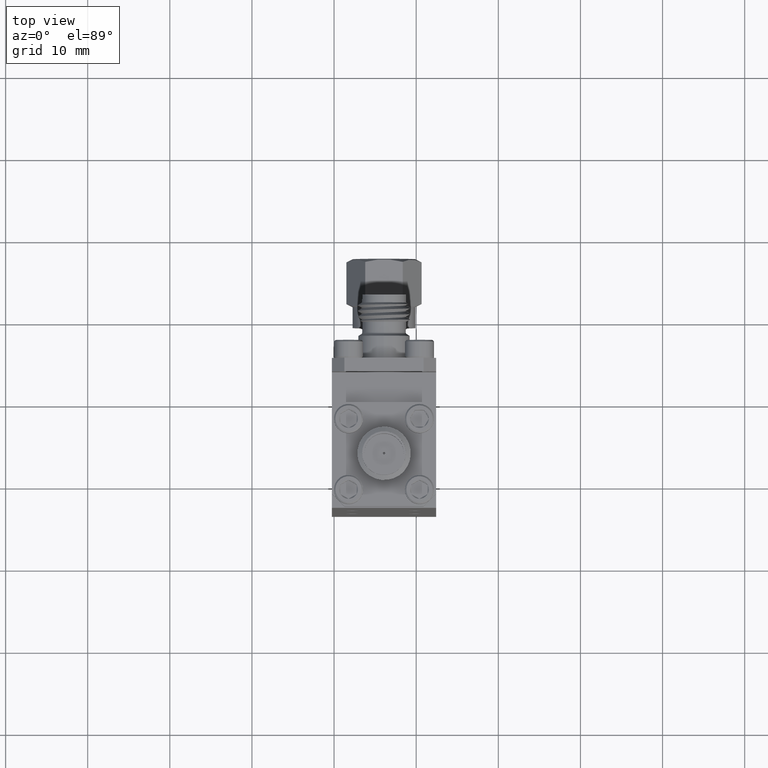
[diagram: clean part render]
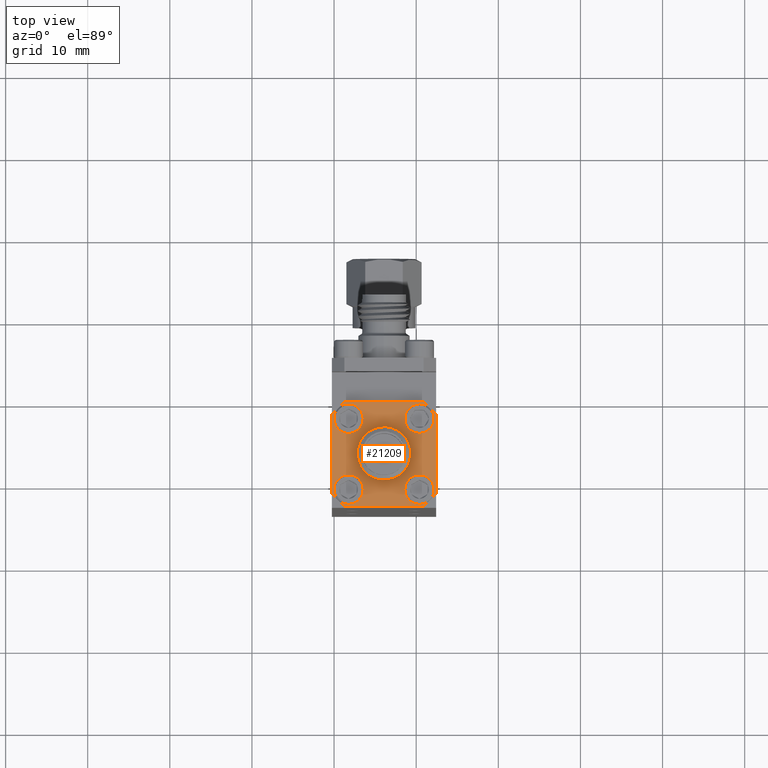
[diagram: same view with one face highlighted and labeled with its STEP entity id]
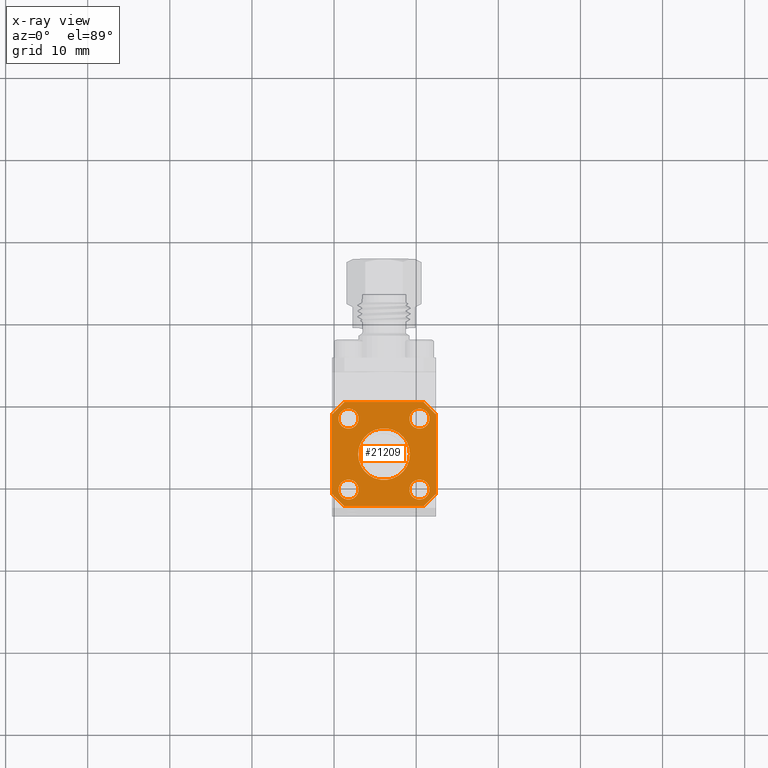
[diagram: x-ray of the same camera — body ghosted, the highlighted face saturated]
A machine part, top view. The second image highlights one B-rep face of the part: STEP entity #21209.
The next image is the same camera in x-ray: the body ghosted, the highlighted face saturated — about 0% of this face is hidden behind the body in this view.
In plain terms, the highlighted planar face has unit normal (-0, -0, 1).
Its self-contained STEP definition (entity closure, byte-faithful):
#105 = DIRECTION ( 'NONE',  ( -1.000000000000000000, 6.106226635438364900E-016, -6.661338147750939200E-016 ) ) ;
#142 = AXIS2_PLACEMENT_3D ( 'NONE', #15738, #5487, #12303 ) ;
#163 = CIRCLE ( 'NONE', #6378, 0.04800000000000014700 ) ;
#443 = AXIS2_PLACEMENT_3D ( 'NONE', #2392, #9333, #2934 ) ;
#454 = VECTOR ( 'NONE', #16244, 39.37007874015748100 ) ;
#618 = CARTESIAN_POINT ( 'NONE',  ( -1.505499139784813600, 0.3386979808095783000, 1.622181018322136600 ) ) ;
#649 = VERTEX_POINT ( 'NONE', #12046 ) ;
#1486 = EDGE_CURVE ( 'NONE', #5425, #17330, #163, .T. ) ;
#1490 = EDGE_CURVE ( 'NONE', #15209, #21714, #6889, .T. ) ;
#1546 = AXIS2_PLACEMENT_3D ( 'NONE', #20164, #8237, #20244 ) ;
#1616 = VECTOR ( 'NONE', #18590, 39.37007874015748900 ) ;
#1701 = VECTOR ( 'NONE', #17772, 39.37007874015748900 ) ;
#1764 = AXIS2_PLACEMENT_3D ( 'NONE', #15164, #15094, #4810 ) ;
#2081 = CARTESIAN_POINT ( 'NONE',  ( -1.459499139784813600, 0.5086979808095784000, 1.622181018322136600 ) ) ;
#2099 = DIRECTION ( 'NONE',  ( -0.7071067811865481300, -0.7071067811865469100, 7.512940834746601900E-017 ) ) ;
#2161 = DIRECTION ( 'NONE',  ( -1.665334536937734800E-016, -5.551115123125782700E-017, 1.000000000000000000 ) ) ;
#2392 = CARTESIAN_POINT ( 'NONE',  ( -1.165499139784813600, 0.6786979808095783300, 1.622181018322136600 ) ) ;
#2402 = CIRCLE ( 'NONE', #1546, 0.04800000000000014700 ) ;
#2689 = ORIENTED_EDGE ( 'NONE', *, *, #8994, .T. ) ;
#2902 = CARTESIAN_POINT ( 'NONE',  ( -1.117499139784813500, 0.3386979808095775800, 1.622181018322136600 ) ) ;
#2934 = DIRECTION ( 'NONE',  ( -1.000000000000000000, 0.0000000000000000000, 0.0000000000000000000 ) ) ;
#3217 = AXIS2_PLACEMENT_3D ( 'NONE', #4437, #18359, #18212 ) ;
#3477 = CIRCLE ( 'NONE', #8995, 0.04800000000000000800 ) ;
#4031 = EDGE_CURVE ( 'NONE', #20368, #11474, #16230, .T. ) ;
#4147 = CIRCLE ( 'NONE', #443, 0.04800000000000000800 ) ;
#4303 = CARTESIAN_POINT ( 'NONE',  ( -1.115499139784813300, 0.7286979808095778200, 1.622181018322136300 ) ) ;
#4437 = CARTESIAN_POINT ( 'NONE',  ( -1.335499139784813500, 0.5086979808095784000, 1.622181018322136600 ) ) ;
#4634 = ORIENTED_EDGE ( 'NONE', *, *, #16987, .T. ) ;
#4708 = VECTOR ( 'NONE', #15859, 39.37007874015748100 ) ;
#4810 = DIRECTION ( 'NONE',  ( -1.000000000000000000, 0.0000000000000000000, 0.0000000000000000000 ) ) ;
#4950 = FACE_BOUND ( 'NONE', #20242, .T. ) ;
#5011 = CARTESIAN_POINT ( 'NONE',  ( -1.585499139784813500, 0.2586979808095782300, 1.622181018322136600 ) ) ;
#5033 = VERTEX_POINT ( 'NONE', #11859 ) ;
#5425 = VERTEX_POINT ( 'NONE', #12302 ) ;
#5486 = CARTESIAN_POINT ( 'NONE',  ( -1.165499139784813600, 0.6786979808095783300, 1.622181018322136600 ) ) ;
#5487 = DIRECTION ( 'NONE',  ( -1.665334536937734800E-016, -5.551115123125782700E-017, 1.000000000000000000 ) ) ;
#5610 = AXIS2_PLACEMENT_3D ( 'NONE', #19638, #12793, #14516 ) ;
#6221 = CARTESIAN_POINT ( 'NONE',  ( -1.457499139784813400, 0.6786979808095782200, 1.622181018322136600 ) ) ;
#6309 = FACE_BOUND ( 'NONE', #9690, .T. ) ;
#6378 = AXIS2_PLACEMENT_3D ( 'NONE', #618, #9171, #17882 ) ;
#6397 = DIRECTION ( 'NONE',  ( -1.000000000000000000, 0.0000000000000000000, 0.0000000000000000000 ) ) ;
#6450 = AXIS2_PLACEMENT_3D ( 'NONE', #11478, #13210, #6397 ) ;
#6529 = ORIENTED_EDGE ( 'NONE', *, *, #7449, .F. ) ;
#6872 = PLANE ( 'NONE',  #10364 ) ;
#6889 = CIRCLE ( 'NONE', #22149, 0.04800000000000014700 ) ;
#6901 = CIRCLE ( 'NONE', #1764, 0.04800000000000000800 ) ;
#7193 = CARTESIAN_POINT ( 'NONE',  ( -1.085499139784813700, 0.3186979808095779500, 1.622181018322136600 ) ) ;
#7449 = EDGE_CURVE ( 'NONE', #11474, #20368, #16992, .T. ) ;
#7744 = DIRECTION ( 'NONE',  ( -1.000000000000000000, 0.0000000000000000000, 0.0000000000000000000 ) ) ;
#8070 = LINE ( 'NONE', #5011, #9412 ) ;
#8137 = ORIENTED_EDGE ( 'NONE', *, *, #11259, .F. ) ;
#8237 = DIRECTION ( 'NONE',  ( -1.665334536937734800E-016, -5.551115123125782700E-017, 1.000000000000000000 ) ) ;
#8246 = EDGE_CURVE ( 'NONE', #5033, #18737, #3477, .T. ) ;
#8331 = VERTEX_POINT ( 'NONE', #2902 ) ;
#8365 = LINE ( 'NONE', #4303, #1616 ) ;
#8444 = FACE_BOUND ( 'NONE', #18070, .T. ) ;
#8795 = ORIENTED_EDGE ( 'NONE', *, *, #16175, .T. ) ;
#8994 = EDGE_CURVE ( 'NONE', #9540, #14217, #8070, .T. ) ;
#8995 = AXIS2_PLACEMENT_3D ( 'NONE', #5486, #19820, #7744 ) ;
#9171 = DIRECTION ( 'NONE',  ( -1.665334536937734800E-016, -5.551115123125782700E-017, 1.000000000000000000 ) ) ;
#9255 = CARTESIAN_POINT ( 'NONE',  ( -1.213499139784813600, 0.3386979808095781900, 1.622181018322136600 ) ) ;
#9333 = DIRECTION ( 'NONE',  ( -1.665334536937734800E-016, -5.551115123125782700E-017, 1.000000000000000000 ) ) ;
#9412 = VECTOR ( 'NONE', #12900, 39.37007874015748100 ) ;
#9525 = EDGE_CURVE ( 'NONE', #20067, #8331, #18239, .T. ) ;
#9540 = VERTEX_POINT ( 'NONE', #18401 ) ;
#9690 = EDGE_LOOP ( 'NONE', ( #16853, #11778 ) ) ;
#10268 = CARTESIAN_POINT ( 'NONE',  ( -1.211499139784813600, 0.5086979808095781800, 1.622181018322136600 ) ) ;
#10305 = LINE ( 'NONE', #14035, #11676 ) ;
#10364 = AXIS2_PLACEMENT_3D ( 'NONE', #22158, #13802, #105 ) ;
#10574 = ORIENTED_EDGE ( 'NONE', *, *, #14467, .F. ) ;
#10713 = CARTESIAN_POINT ( 'NONE',  ( -1.115499139784814200, 0.2886979808095779300, 1.622181018322136600 ) ) ;
#10893 = LINE ( 'NONE', #13982, #4708 ) ;
#11113 = LINE ( 'NONE', #12222, #17049 ) ;
#11185 = EDGE_CURVE ( 'NONE', #649, #18097, #8365, .T. ) ;
#11259 = EDGE_CURVE ( 'NONE', #21714, #15209, #2402, .T. ) ;
#11419 = VECTOR ( 'NONE', #20066, 39.37007874015748900 ) ;
#11474 = VERTEX_POINT ( 'NONE', #10268 ) ;
#11478 = CARTESIAN_POINT ( 'NONE',  ( -1.165499139784813600, 0.3386979808095781900, 1.622181018322136600 ) ) ;
#11663 = LINE ( 'NONE', #10713, #1701 ) ;
#11676 = VECTOR ( 'NONE', #2099, 39.37007874015748900 ) ;
#11760 = ORIENTED_EDGE ( 'NONE', *, *, #16931, .T. ) ;
#11778 = ORIENTED_EDGE ( 'NONE', *, *, #20105, .F. ) ;
#11859 = CARTESIAN_POINT ( 'NONE',  ( -1.213499139784813600, 0.6786979808095783300, 1.622181018322136600 ) ) ;
#12046 = CARTESIAN_POINT ( 'NONE',  ( -1.085499139784814400, 0.6986979808095780100, 1.622181018322136600 ) ) ;
#12084 = ORIENTED_EDGE ( 'NONE', *, *, #1486, .F. ) ;
#12201 = EDGE_CURVE ( 'NONE', #17330, #5425, #19321, .T. ) ;
#12222 = CARTESIAN_POINT ( 'NONE',  ( -1.585499139784813500, 0.7586979808095781800, 1.622181018322136600 ) ) ;
#12302 = CARTESIAN_POINT ( 'NONE',  ( -1.553499139784813700, 0.3386979808095783000, 1.622181018322136600 ) ) ;
#12303 = DIRECTION ( 'NONE',  ( -1.000000000000000000, 5.507758051742461700E-016, 0.0000000000000000000 ) ) ;
#12450 = VERTEX_POINT ( 'NONE', #13326 ) ;
#12691 = CARTESIAN_POINT ( 'NONE',  ( -1.525499139784813400, 0.7586979808095781800, 1.622181018322136600 ) ) ;
#12722 = ORIENTED_EDGE ( 'NONE', *, *, #15774, .T. ) ;
#12793 = DIRECTION ( 'NONE',  ( -1.665334536937734800E-016, -5.551115123125782700E-017, 1.000000000000000000 ) ) ;
#12900 = DIRECTION ( 'NONE',  ( 1.000000000000000000, -6.106226635438364900E-016, 6.661338147750939200E-016 ) ) ;
#13210 = DIRECTION ( 'NONE',  ( -1.665334536937734800E-016, -5.551115123125782700E-017, 1.000000000000000000 ) ) ;
#13326 = CARTESIAN_POINT ( 'NONE',  ( -1.585499139784813500, 0.6986979808095783500, 1.622181018322136600 ) ) ;
#13631 = VERTEX_POINT ( 'NONE', #15703 ) ;
#13634 = DIRECTION ( 'NONE',  ( -1.000000000000000000, 6.106226635438364900E-016, -6.661338147750939200E-016 ) ) ;
#13802 = DIRECTION ( 'NONE',  ( -6.661338147750939200E-016, -5.551115123125751900E-017, 1.000000000000000000 ) ) ;
#13846 = EDGE_CURVE ( 'NONE', #19582, #649, #16856, .T. ) ;
#13982 = CARTESIAN_POINT ( 'NONE',  ( -1.585499139784813500, 0.2586979808095782300, 1.622181018322136600 ) ) ;
#14035 = CARTESIAN_POINT ( 'NONE',  ( -1.555499139784813500, 0.7286979808095784800, 1.622181018322136300 ) ) ;
#14217 = VERTEX_POINT ( 'NONE', #15758 ) ;
#14279 = CARTESIAN_POINT ( 'NONE',  ( -1.085499139784813500, 0.2586979808095781800, 1.622181018322136600 ) ) ;
#14467 = EDGE_CURVE ( 'NONE', #8331, #20067, #6901, .T. ) ;
#14516 = DIRECTION ( 'NONE',  ( -1.000000000000000000, 0.0000000000000000000, 0.0000000000000000000 ) ) ;
#14869 = CARTESIAN_POINT ( 'NONE',  ( -1.555499139784813900, 0.2886979808095784800, 1.622181018322136600 ) ) ;
#15052 = ORIENTED_EDGE ( 'NONE', *, *, #1490, .F. ) ;
#15090 = CARTESIAN_POINT ( 'NONE',  ( -1.553499139784813700, 0.6786979808095783300, 1.622181018322136600 ) ) ;
#15094 = DIRECTION ( 'NONE',  ( -1.665334536937734800E-016, -5.551115123125782700E-017, 1.000000000000000000 ) ) ;
#15150 = FACE_BOUND ( 'NONE', #17696, .T. ) ;
#15164 = CARTESIAN_POINT ( 'NONE',  ( -1.165499139784813600, 0.3386979808095781900, 1.622181018322136600 ) ) ;
#15209 = VERTEX_POINT ( 'NONE', #6221 ) ;
#15703 = CARTESIAN_POINT ( 'NONE',  ( -1.585499139784813300, 0.3186979808095769000, 1.622181018322136600 ) ) ;
#15738 = CARTESIAN_POINT ( 'NONE',  ( -1.335499139784813500, 0.5086979808095784000, 1.622181018322136600 ) ) ;
#15758 = CARTESIAN_POINT ( 'NONE',  ( -1.145499139784814000, 0.2586979808095782300, 1.622181018322136800 ) ) ;
#15774 = EDGE_CURVE ( 'NONE', #12450, #13631, #10893, .T. ) ;
#15859 = DIRECTION ( 'NONE',  ( 2.220446049250312300E-016, -1.000000000000000000, 5.551115123125785200E-017 ) ) ;
#15903 = CARTESIAN_POINT ( 'NONE',  ( -1.505499139784813600, 0.6786979808095783300, 1.622181018322136600 ) ) ;
#16175 = EDGE_CURVE ( 'NONE', #13631, #9540, #21615, .T. ) ;
#16230 = CIRCLE ( 'NONE', #142, 0.1240000000000001000 ) ;
#16244 = DIRECTION ( 'NONE',  ( -2.220446049250312300E-016, 1.000000000000000000, -5.551115123125785200E-017 ) ) ;
#16853 = ORIENTED_EDGE ( 'NONE', *, *, #8246, .F. ) ;
#16856 = LINE ( 'NONE', #14279, #454 ) ;
#16931 = EDGE_CURVE ( 'NONE', #18097, #20142, #11113, .T. ) ;
#16948 = CARTESIAN_POINT ( 'NONE',  ( -1.457499139784813400, 0.3386979808095780300, 1.622181018322136600 ) ) ;
#16987 = EDGE_CURVE ( 'NONE', #14217, #19582, #11663, .T. ) ;
#16992 = CIRCLE ( 'NONE', #3217, 0.1240000000000001000 ) ;
#17015 = CARTESIAN_POINT ( 'NONE',  ( -1.145499139784813500, 0.7586979808095781800, 1.622181018322136600 ) ) ;
#17049 = VECTOR ( 'NONE', #13634, 39.37007874015748100 ) ;
#17163 = ORIENTED_EDGE ( 'NONE', *, *, #4031, .F. ) ;
#17330 = VERTEX_POINT ( 'NONE', #16948 ) ;
#17456 = ORIENTED_EDGE ( 'NONE', *, *, #11185, .T. ) ;
#17654 = ORIENTED_EDGE ( 'NONE', *, *, #12201, .F. ) ;
#17696 = EDGE_LOOP ( 'NONE', ( #6529, #17163 ) ) ;
#17772 = DIRECTION ( 'NONE',  ( 0.7071067811865481300, 0.7071067811865469100, 4.737072838918524300E-016 ) ) ;
#17816 = ORIENTED_EDGE ( 'NONE', *, *, #13846, .T. ) ;
#17882 = DIRECTION ( 'NONE',  ( -1.000000000000000000, 0.0000000000000000000, 0.0000000000000000000 ) ) ;
#18056 = ORIENTED_EDGE ( 'NONE', *, *, #9525, .F. ) ;
#18070 = EDGE_LOOP ( 'NONE', ( #8137, #15052 ) ) ;
#18097 = VERTEX_POINT ( 'NONE', #17015 ) ;
#18122 = FACE_BOUND ( 'NONE', #21980, .T. ) ;
#18212 = DIRECTION ( 'NONE',  ( -1.000000000000000000, 5.507758051742461700E-016, 0.0000000000000000000 ) ) ;
#18239 = CIRCLE ( 'NONE', #6450, 0.04800000000000000800 ) ;
#18359 = DIRECTION ( 'NONE',  ( -1.665334536937734800E-016, -5.551115123125782700E-017, 1.000000000000000000 ) ) ;
#18401 = CARTESIAN_POINT ( 'NONE',  ( -1.525499139784813900, 0.2586979808095781800, 1.622181018322136600 ) ) ;
#18544 = EDGE_LOOP ( 'NONE', ( #12722, #8795, #2689, #4634, #17816, #17456, #11760, #21574 ) ) ;
#18590 = DIRECTION ( 'NONE',  ( -0.7071067811865461300, 0.7071067811865489100, -6.224578317002508200E-017 ) ) ;
#18737 = VERTEX_POINT ( 'NONE', #20143 ) ;
#19321 = CIRCLE ( 'NONE', #5610, 0.04800000000000014700 ) ;
#19451 = DIRECTION ( 'NONE',  ( -1.000000000000000000, 0.0000000000000000000, 0.0000000000000000000 ) ) ;
#19582 = VERTEX_POINT ( 'NONE', #7193 ) ;
#19638 = CARTESIAN_POINT ( 'NONE',  ( -1.505499139784813600, 0.3386979808095783000, 1.622181018322136600 ) ) ;
#19820 = DIRECTION ( 'NONE',  ( -1.665334536937734800E-016, -5.551115123125782700E-017, 1.000000000000000000 ) ) ;
#20066 = DIRECTION ( 'NONE',  ( 0.7071067811865461300, -0.7071067811865489100, 6.224578317002508200E-017 ) ) ;
#20067 = VERTEX_POINT ( 'NONE', #9255 ) ;
#20105 = EDGE_CURVE ( 'NONE', #18737, #5033, #4147, .T. ) ;
#20142 = VERTEX_POINT ( 'NONE', #12691 ) ;
#20143 = CARTESIAN_POINT ( 'NONE',  ( -1.117499139784813500, 0.6786979808095783300, 1.622181018322136600 ) ) ;
#20164 = CARTESIAN_POINT ( 'NONE',  ( -1.505499139784813600, 0.6786979808095783300, 1.622181018322136600 ) ) ;
#20242 = EDGE_LOOP ( 'NONE', ( #18056, #10574 ) ) ;
#20244 = DIRECTION ( 'NONE',  ( -1.000000000000000000, 0.0000000000000000000, 0.0000000000000000000 ) ) ;
#20368 = VERTEX_POINT ( 'NONE', #2081 ) ;
#20513 = FACE_OUTER_BOUND ( 'NONE', #18544, .T. ) ;
#21209 = ADVANCED_FACE ( 'NONE', ( #20513, #8444, #6309, #4950, #18122, #15150 ), #6872, .T. ) ;
#21317 = EDGE_CURVE ( 'NONE', #20142, #12450, #10305, .T. ) ;
#21574 = ORIENTED_EDGE ( 'NONE', *, *, #21317, .T. ) ;
#21615 = LINE ( 'NONE', #14869, #11419 ) ;
#21714 = VERTEX_POINT ( 'NONE', #15090 ) ;
#21980 = EDGE_LOOP ( 'NONE', ( #12084, #17654 ) ) ;
#22149 = AXIS2_PLACEMENT_3D ( 'NONE', #15903, #2161, #19451 ) ;
#22158 = CARTESIAN_POINT ( 'NONE',  ( -1.335499139784813500, 0.5086979808095784000, 1.622181018322136600 ) ) ;